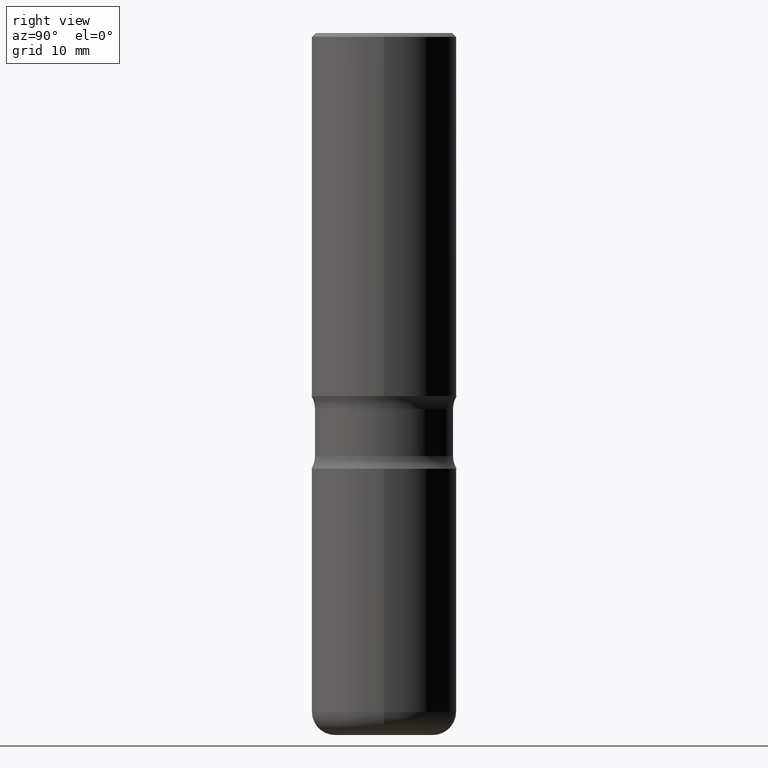
[diagram: clean part render]
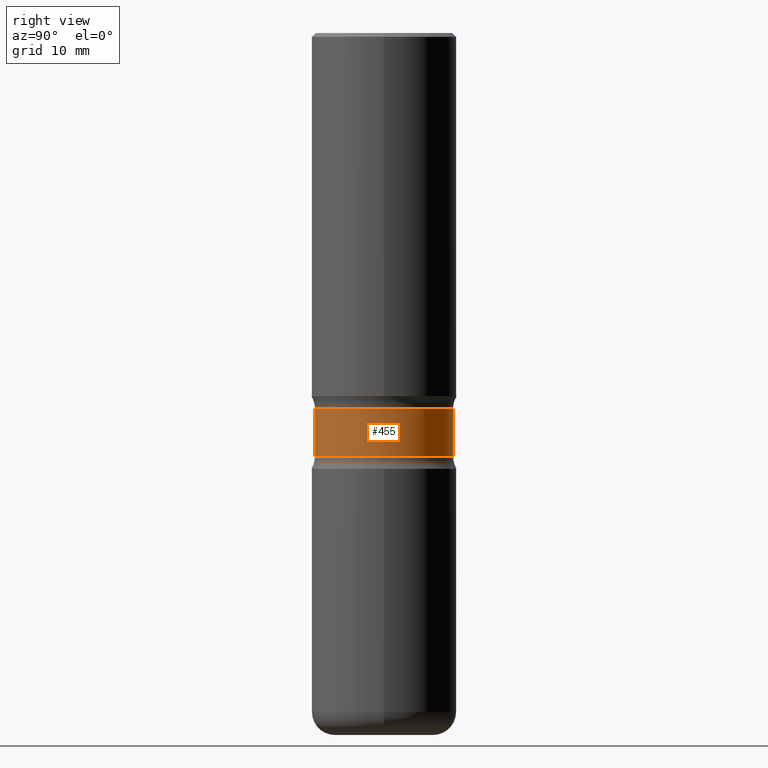
[diagram: same view with one face highlighted and labeled with its STEP entity id]
A machine part, right view. The second image highlights one B-rep face of the part: STEP entity #455.
In plain terms, the highlighted cylindrical surface (partial cylindrical patch) has radius 9.0551 mm, axis along (0, -0, -1).
Its self-contained STEP definition (entity closure, byte-faithful):
#2 = CIRCLE ( 'NONE', #207, 0.3564999999999999836 ) ;
#11 = AXIS2_PLACEMENT_3D ( 'NONE', #26, #549, #470 ) ;
#26 = CARTESIAN_POINT ( 'NONE',  ( 4.755380187780347497E-29, -6.760572911487338460E-15, -1.940442723048480866 ) ) ;
#33 = EDGE_CURVE ( 'NONE', #506, #350, #285, .T. ) ;
#34 = VECTOR ( 'NONE', #435, 39.37007874015748143 ) ;
#63 = DIRECTION ( 'NONE',  ( 6.982962677686266711E-15, 1.000000000000000000, -3.065187089665372450E-15 ) ) ;
#73 = EDGE_CURVE ( 'NONE', #367, #426, #2, .T. ) ;
#107 = FACE_OUTER_BOUND ( 'NONE', #489, .T. ) ;
#110 = VECTOR ( 'NONE', #203, 39.37007874015748143 ) ;
#133 = ORIENTED_EDGE ( 'NONE', *, *, #33, .T. ) ;
#135 = LINE ( 'NONE', #311, #34 ) ;
#153 = CARTESIAN_POINT ( 'NONE',  ( -2.509227142684884613E-15, -0.3565000000000076441, -2.184557276951519356 ) ) ;
#195 = CARTESIAN_POINT ( 'NONE',  ( -2.445767536205462640E-15, -0.3565000000000126956, -3.624999999999999556 ) ) ;
#203 = DIRECTION ( 'NONE',  ( 2.412880205859895114E-29, -3.538150069336831953E-15, -1.000000000000000000 ) ) ;
#206 = CARTESIAN_POINT ( 'NONE',  ( 2.489426194595207267E-15, 0.3564999999999923785, -2.184557276951522020 ) ) ;
#207 = AXIS2_PLACEMENT_3D ( 'NONE', #260, #420, #386 ) ;
#243 = CARTESIAN_POINT ( 'NONE',  ( 8.820015096973915297E-29, -1.272078935773522598E-14, -3.625000000000000888 ) ) ;
#260 = CARTESIAN_POINT ( 'NONE',  ( 5.344399362855309954E-29, -7.624286837305509561E-15, -2.184557276951520688 ) ) ;
#279 = DIRECTION ( 'NONE',  ( 2.412880205859895394E-29, -3.538150069336831953E-15, -1.000000000000000000 ) ) ;
#285 = CIRCLE ( 'NONE', #11, 0.3564999999999999281 ) ;
#301 = AXIS2_PLACEMENT_3D ( 'NONE', #243, #279, #63 ) ;
#310 = EDGE_CURVE ( 'NONE', #506, #367, #135, .T. ) ;
#311 = CARTESIAN_POINT ( 'NONE',  ( 2.489426194595242372E-15, 0.3564999999999873270, -3.625000000000001776 ) ) ;
#315 = EDGE_CURVE ( 'NONE', #350, #426, #439, .T. ) ;
#326 = CYLINDRICAL_SURFACE ( 'NONE', #301, 0.3564999999999999836 ) ;
#328 = ORIENTED_EDGE ( 'NONE', *, *, #310, .F. ) ;
#340 = CARTESIAN_POINT ( 'NONE',  ( 2.489426194595200956E-15, 0.3564999999999931557, -1.940442723048482199 ) ) ;
#350 = VERTEX_POINT ( 'NONE', #498 ) ;
#367 = VERTEX_POINT ( 'NONE', #206 ) ;
#386 = DIRECTION ( 'NONE',  ( 6.982962677686266711E-15, 1.000000000000000000, -3.831483862081716154E-15 ) ) ;
#420 = DIRECTION ( 'NONE',  ( 2.412880205859895394E-29, -3.538150069336831953E-15, -1.000000000000000000 ) ) ;
#426 = VERTEX_POINT ( 'NONE', #153 ) ;
#432 = ORIENTED_EDGE ( 'NONE', *, *, #315, .T. ) ;
#435 = DIRECTION ( 'NONE',  ( 2.412880205859895114E-29, -3.538150069336831953E-15, -1.000000000000000000 ) ) ;
#439 = LINE ( 'NONE', #195, #110 ) ;
#455 = ADVANCED_FACE ( 'NONE', ( #107 ), #326, .T. ) ;
#470 = DIRECTION ( 'NONE',  ( 6.982962677686265922E-15, 1.000000000000000000, -3.831483862081716154E-15 ) ) ;
#481 = ORIENTED_EDGE ( 'NONE', *, *, #73, .F. ) ;
#489 = EDGE_LOOP ( 'NONE', ( #133, #432, #481, #328 ) ) ;
#498 = CARTESIAN_POINT ( 'NONE',  ( -2.509227142684891319E-15, -0.3565000000000067004, -1.940442723048479534 ) ) ;
#506 = VERTEX_POINT ( 'NONE', #340 ) ;
#549 = DIRECTION ( 'NONE',  ( 2.412880205859895394E-29, -3.538150069336831953E-15, -1.000000000000000000 ) ) ;